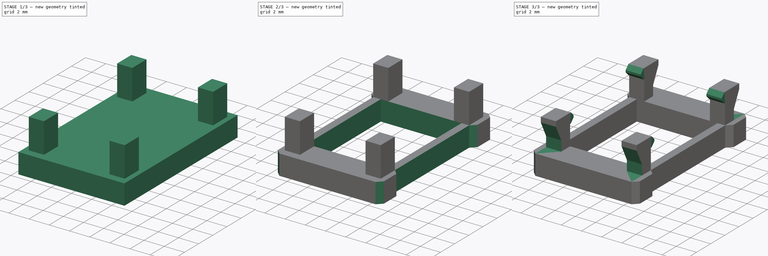
[diagram: build sequence overview — one tinted view per stage of 3, left to right]
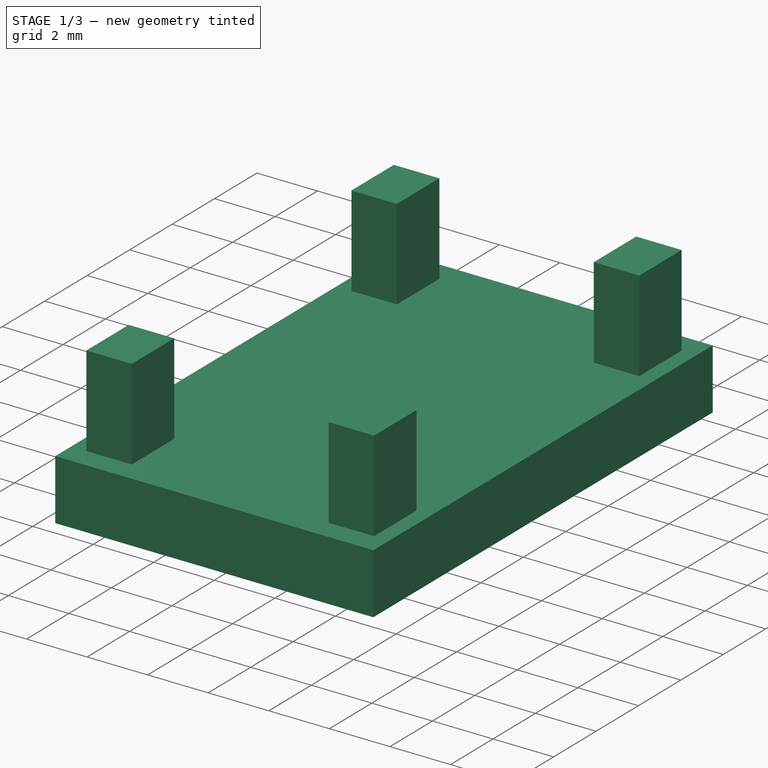
[diagram: stage 1 of 3 — iso view after this stage's code; geometry added in this stage tinted green]
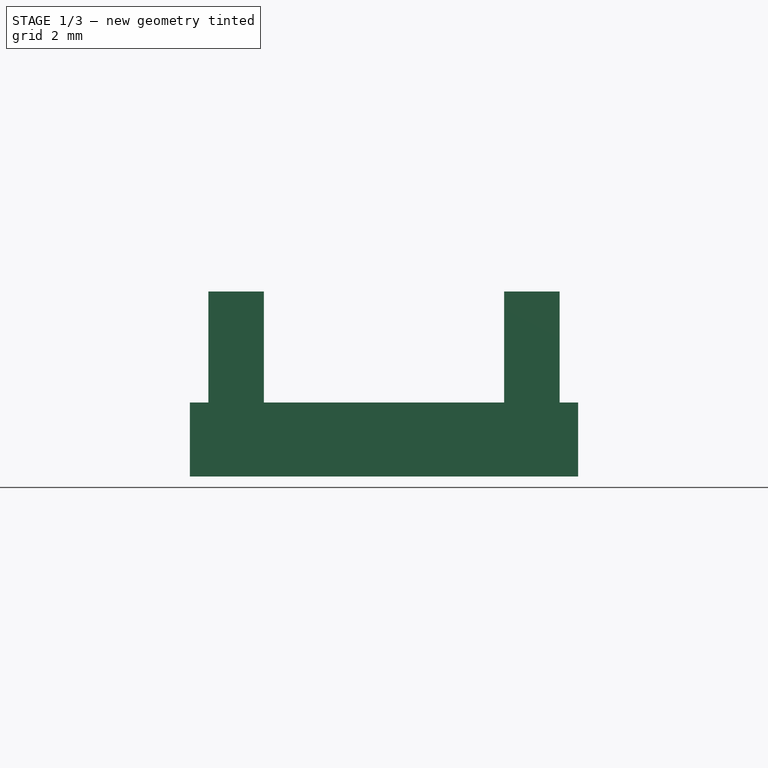
[diagram: stage 1 of 3 — front view after this stage's code; geometry added in this stage tinted green]
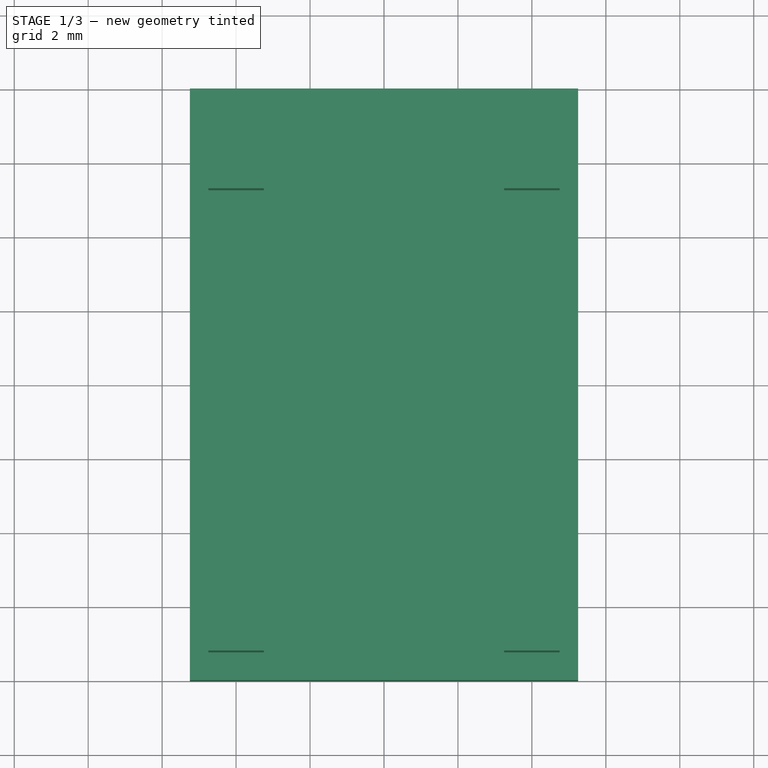
[diagram: stage 1 of 3 — top view after this stage's code; geometry added in this stage tinted green]
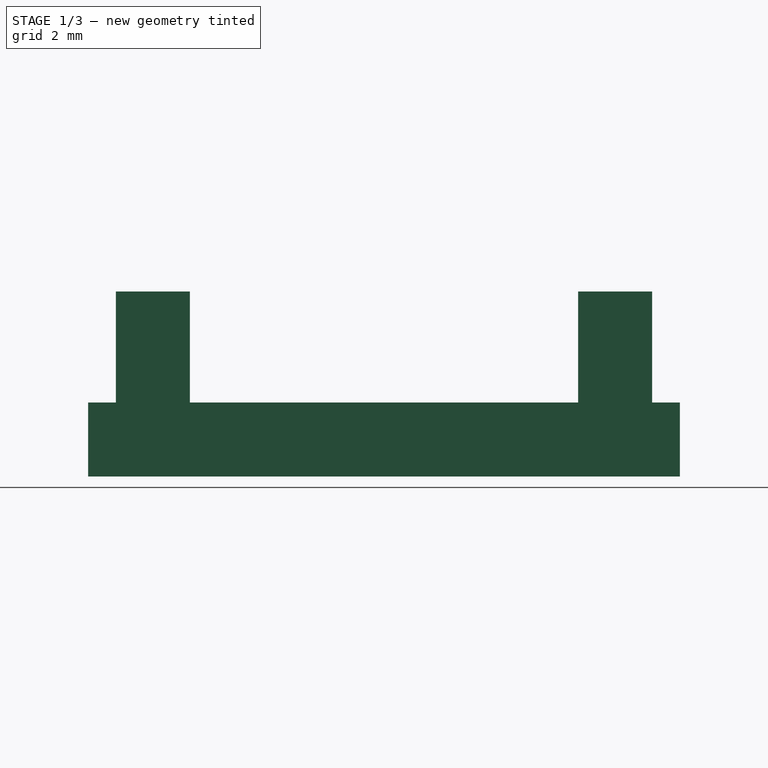
[diagram: stage 1 of 3 — right view after this stage's code; geometry added in this stage tinted green]
FCSTD DOCUMENT  (FreeCAD 0.19R24291 (Git))
Label: led-room-lamp-bracket
License: All rights reserved
LicenseURL: http://en.wikipedia.org/wiki/All_rights_reserved
objects: Sketcher::SketchObject×6, PartDesign::Pad×4, PartDesign::Pocket×2, PartDesign::Chamfer×2, PartDesign::Body×1
note: 23 computed .brp shape members not serialized (recipe doc carries the construction recipe); baked Part::Feature solids carry a one-line shape summary decoded from their .brp

FEATURE [Sketcher::SketchObject] Sketch
  FullyConstrained = true
  MapMode = 5
  Support = -> [XY_Plane]
  sketch-geometry (4):
    g0: LineSegment StartX=-5.25 StartY=7.25 StartZ=0 EndX=5.25 EndY=7.25 EndZ=0
    g1: LineSegment StartX=5.25 StartY=7.25 StartZ=0 EndX=5.25 EndY=-7.25 EndZ=0
    g2: LineSegment StartX=5.25 StartY=-7.25 StartZ=0 EndX=-5.25 EndY=-7.25 EndZ=0
    g3: LineSegment StartX=-5.25 StartY=-7.25 StartZ=0 EndX=-5.25 EndY=7.25 EndZ=0
  constraints (12):
    c: Coincident(g0,g1)
    c: Coincident(g1,g2)
    c: Coincident(g2,g3)
    c: Coincident(g3,g0)
    c: Horizontal(g0)
    c: Horizontal(g2)
    c: Vertical(g1)
    c: Vertical(g3)
    c: DistanceY(g3,g3) = 14.5
    c: DistanceY(g-1,g0) = 7.25
    c: DistanceX(g0,g0) = 10.5
    c: DistanceX(g0,g-1) = 5.25
FEATURE [PartDesign::Pad] Pad
  Direction = (1,1,1)
  Length = 2
  Length2 = 100
  Profile = -> Sketch
  Type = 0
FEATURE [Sketcher::SketchObject] Sketch001
  FullyConstrained = true
  MapMode = 5
  Placement = pos=(0,0,2) rot=(0,0,1;0rad)
  Support = -> [Pad]
  sketch-geometry (16):
    g0: LineSegment StartX=-4.75 StartY=-7.25 StartZ=0 EndX=-3.25 EndY=-7.25 EndZ=0
    g1: LineSegment StartX=-3.25 StartY=-7.25 StartZ=0 EndX=-3.25 EndY=-5.25 EndZ=0
    g2: LineSegment StartX=-3.25 StartY=-5.25 StartZ=0 EndX=-4.75 EndY=-5.25 EndZ=0
    g3: LineSegment StartX=-4.75 StartY=-5.25 StartZ=0 EndX=-4.75 EndY=-7.25 EndZ=0
    g4: LineSegment StartX=4.75 StartY=-7.25 StartZ=0 EndX=3.25 EndY=-7.25 EndZ=0
    g5: LineSegment StartX=3.25 StartY=-7.25 StartZ=0 EndX=3.25 EndY=-5.25 EndZ=0
    g6: LineSegment StartX=3.25 StartY=-5.25 StartZ=0 EndX=4.75 EndY=-5.25 EndZ=0
    g7: LineSegment StartX=4.75 StartY=-5.25 StartZ=0 EndX=4.75 EndY=-7.25 EndZ=0
    g8: LineSegment StartX=-4.75 StartY=7.25 StartZ=0 EndX=-3.25 EndY=7.25 EndZ=0
    g9: LineSegment StartX=-3.25 StartY=7.25 StartZ=0 EndX=-3.25 EndY=5.25 EndZ=0
    g10: LineSegment StartX=-3.25 StartY=5.25 StartZ=0 EndX=-4.75 EndY=5.25 EndZ=0
    g11: LineSegment StartX=-4.75 StartY=5.25 StartZ=0 EndX=-4.75 EndY=7.25 EndZ=0
    g12: LineSegment StartX=3.25 StartY=7.25 StartZ=0 EndX=4.75 EndY=7.25 EndZ=0
    g13: LineSegment StartX=4.75 StartY=7.25 StartZ=0 EndX=4.75 EndY=5.25 EndZ=0
    g14: LineSegment StartX=4.75 StartY=5.25 StartZ=0 EndX=3.25 EndY=5.25 EndZ=0
    g15: LineSegment StartX=3.25 StartY=5.25 StartZ=0 EndX=3.25 EndY=7.25 EndZ=0
  constraints (48):
    c: Coincident(g0,g1)
    c: Coincident(g1,g2)
    c: Coincident(g2,g3)
    c: Coincident(g3,g0)
    c: Horizontal(g0)
    c: Horizontal(g2)
    c: Vertical(g1)
    c: Vertical(g3)
    c: Coincident(g4,g5)
    c: Coincident(g5,g6)
    c: Coincident(g6,g7)
    c: Coincident(g7,g4)
    c: Horizontal(g4)
    c: Horizontal(g6)
    c: Vertical(g5)
    c: Vertical(g7)
    c: Coincident(g8,g9)
    c: Coincident(g9,g10)
    c: Coincident(g10,g11)
    c: Coincident(g11,g8)
    c: Horizontal(g8)
    c: Horizontal(g10)
    c: Vertical(g9)
    c: Vertical(g11)
    c: Coincident(g12,g13)
    c: Coincident(g13,g14)
    c: Coincident(g14,g15)
    c: Coincident(g15,g12)
    c: Horizontal(g12)
    c: Horizontal(g14)
    c: Vertical(g13)
    c: Vertical(g15)
    c: Equal(g10,g2)
    c: Equal(g2,g6)
    c: Equal(g6,g14)
    c: Equal(g9,g15)
    c: Equal(g15,g5)
    c: Equal(g5,g1)
    c: DistanceY(g9,g9) = 2
    c: DistanceX(g8,g8) = 1.5
    c: Horizontal(g8,g12)
    c: Horizontal(g1,g5)
    c: Vertical(g2,g10)
    c: Vertical(g14,g5)
    c: DistanceY(g0,g-1) = 7.25
    c: DistanceY(g-1,g8) = 7.25
    c: DistanceX(g8,g-1) = 4.75
    c: DistanceX(g-1,g13) = 4.75
FEATURE [PartDesign::Pad] Pad001
  BaseFeature = -> Pad
  Direction = (1,1,1)
  Length = 3
  Length2 = 100
  Profile = -> Sketch001
  Type = 0
FEATURE [Sketcher::SketchObject] Sketch002
  FullyConstrained = true
  MapMode = 5
  Placement = pos=(0,0,0) rot=(1,0,0;3.14159rad)
  Support = -> [Pad001]
  sketch-geometry (4):
    g0: LineSegment StartX=-5.25 StartY=8 StartZ=0 EndX=5.25 EndY=8 EndZ=0
    g1: LineSegment StartX=5.25 StartY=8 StartZ=0 EndX=5.25 EndY=-8 EndZ=0
    g2: LineSegment StartX=5.25 StartY=-8 StartZ=0 EndX=-5.25 EndY=-8 EndZ=0
    g3: LineSegment StartX=-5.25 StartY=-8 StartZ=0 EndX=-5.25 EndY=8 EndZ=0
  constraints (12):
    c: Coincident(g0,g1)
    c: Coincident(g1,g2)
    c: Coincident(g2,g3)
    c: Coincident(g3,g0)
    c: Horizontal(g0)
    c: Horizontal(g2)
    c: Vertical(g1)
    c: Vertical(g3)
    c: DistanceX(g0,g0) = 10.5
    c: DistanceX(g0,g-1) = 5.25
    c: DistanceY(g3,g3) = 16
    c: DistanceY(g-1,g0) = 8
FEATURE [PartDesign::Pad] Pad002
  BaseFeature = -> Pad001
  Direction = (1,1,1)
  Length = 2
  Length2 = 100
  Profile = -> Sketch002
  Reversed = true
  Type = 0
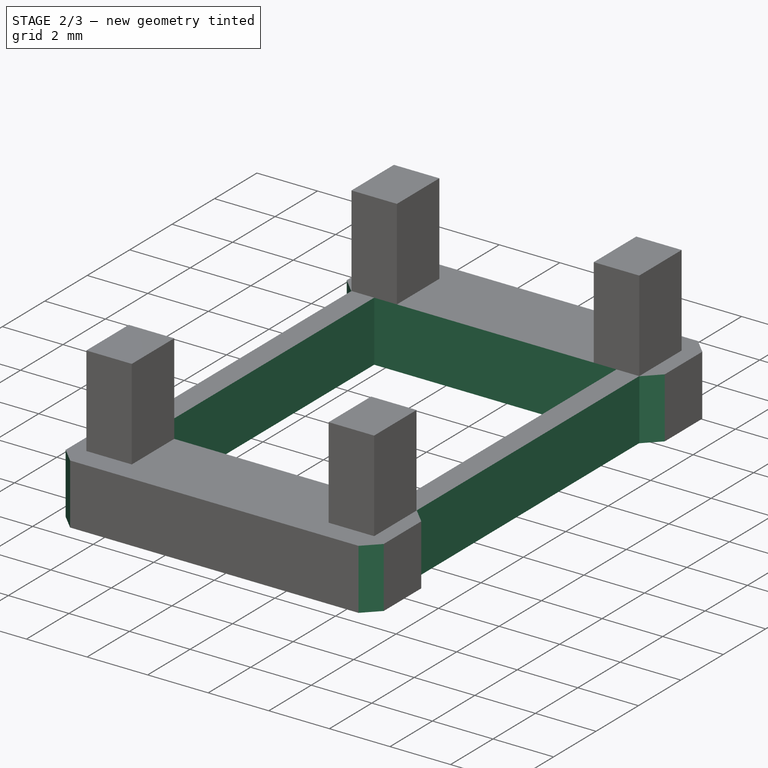
[diagram: stage 2 of 3 — iso view after this stage's code; geometry added in this stage tinted green]
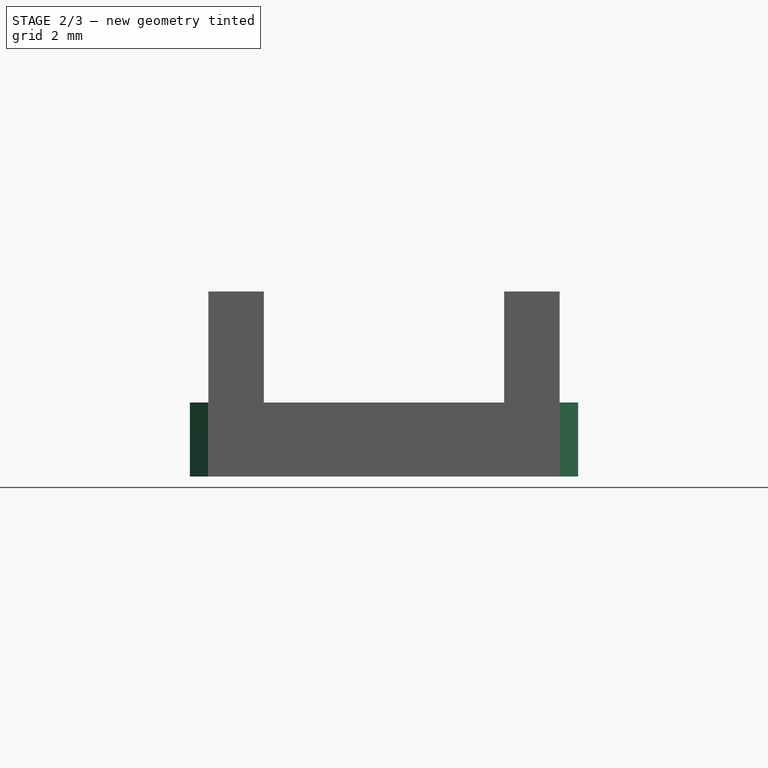
[diagram: stage 2 of 3 — front view after this stage's code; geometry added in this stage tinted green]
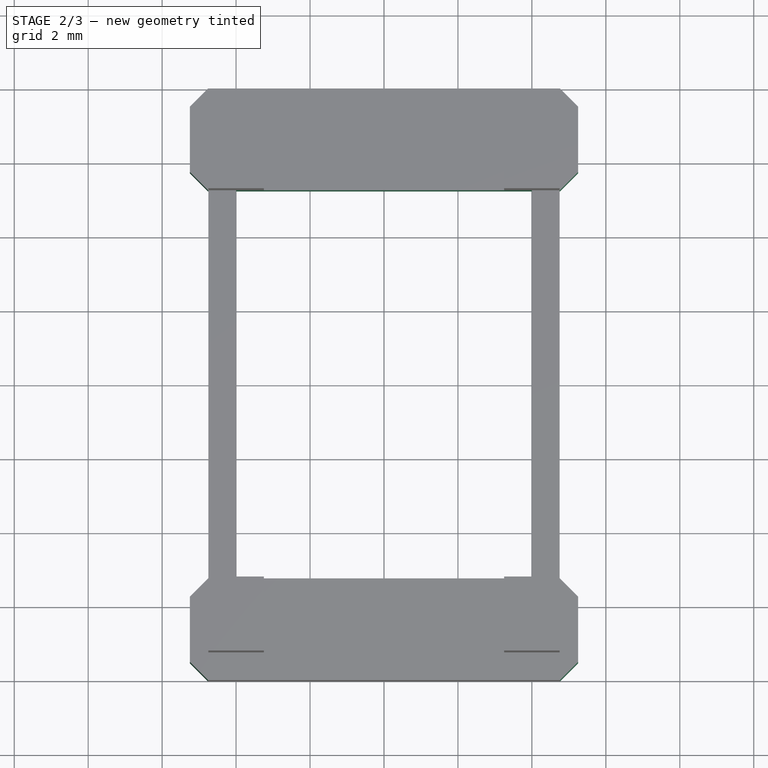
[diagram: stage 2 of 3 — top view after this stage's code; geometry added in this stage tinted green]
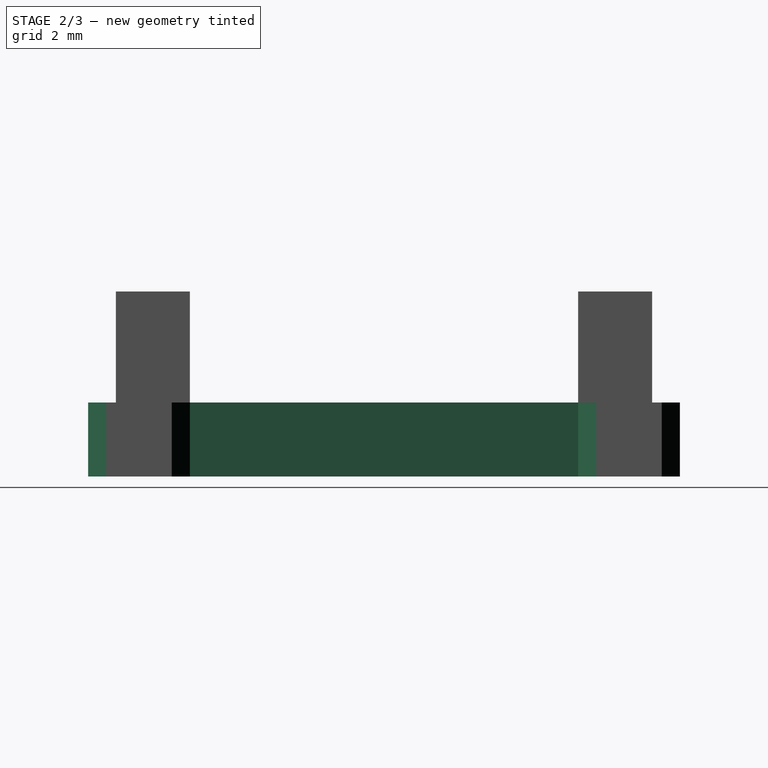
[diagram: stage 2 of 3 — right view after this stage's code; geometry added in this stage tinted green]
FEATURE [Sketcher::SketchObject] Sketch003
  FullyConstrained = true
  MapMode = 5
  Placement = pos=(0,0,2) rot=(0,0,1;0rad)
  Support = -> [Pad002]
  sketch-geometry (12):
    g0: LineSegment StartX=-4 StartY=5.25 StartZ=0 EndX=4 EndY=5.25 EndZ=0
    g1: LineSegment StartX=4 StartY=5.25 StartZ=0 EndX=4 EndY=-5.25 EndZ=0
    g2: LineSegment StartX=4 StartY=-5.25 StartZ=0 EndX=-4 EndY=-5.25 EndZ=0
    g3: LineSegment StartX=-4 StartY=-5.25 StartZ=0 EndX=-4 EndY=5.25 EndZ=0
    g4: LineSegment StartX=-5.25 StartY=5.25 StartZ=0 EndX=-4.75 EndY=5.25 EndZ=0
    g5: LineSegment StartX=-4.75 StartY=5.25 StartZ=0 EndX=-4.75 EndY=-5.25 EndZ=0
    g6: LineSegment StartX=-4.75 StartY=-5.25 StartZ=0 EndX=-5.25 EndY=-5.25 EndZ=0
    g7: LineSegment StartX=-5.25 StartY=-5.25 StartZ=0 EndX=-5.25 EndY=5.25 EndZ=0
    g8: LineSegment StartX=5.25 StartY=5.25 StartZ=0 EndX=4.75 EndY=5.25 EndZ=0
    g9: LineSegment StartX=4.75 StartY=5.25 StartZ=0 EndX=4.75 EndY=-5.25 EndZ=0
    g10: LineSegment StartX=4.75 StartY=-5.25 StartZ=0 EndX=5.25 EndY=-5.25 EndZ=0
    g11: LineSegment StartX=5.25 StartY=-5.25 StartZ=0 EndX=5.25 EndY=5.25 EndZ=0
  constraints (36):
    c: Coincident(g0,g1)
    c: Coincident(g1,g2)
    c: Coincident(g2,g3)
    c: Coincident(g3,g0)
    c: Horizontal(g0)
    c: Horizontal(g2)
    c: Vertical(g1)
    c: Vertical(g3)
    c: DistanceY(g3,g3) = 10.5
    c: DistanceY(g-1,g0) = 5.25
    c: DistanceX(g2,g2) = 8
    c: DistanceX(g2,g-1) = 4
    c: Coincident(g4,g5)
    c: Coincident(g5,g6)
    c: Coincident(g6,g7)
    c: Coincident(g7,g4)
    c: Horizontal(g4)
    c: Horizontal(g6)
    c: Vertical(g5)
    c: Vertical(g7)
    c: Coincident(g8,g9)
    c: Coincident(g9,g10)
    c: Coincident(g10,g11)
    c: Coincident(g11,g8)
    c: Horizontal(g8)
    c: Horizontal(g10)
    c: Vertical(g9)
    c: Vertical(g11)
    c: Horizontal(g9,g1)
    c: Horizontal(g1,g6)
    c: Horizontal(g4,g0)
    c: Horizontal(g0,g8)
    c: Equal(g8,g4)
    c: DistanceX(g8,g8) = 0.5
    c: DistanceX(g0,g8) = 0.75
    c: DistanceX(g4,g0) = 0.75
FEATURE [PartDesign::Pocket] Pocket
  BaseFeature = -> Pad002
  Length = 5
  Length2 = 100
  Profile = -> Sketch003
  Refine = true
  Type = 1
FEATURE [PartDesign::Chamfer] Chamfer
  Angle = 45
  Base = -> Pocket [Edge40,Edge42,Edge27,Edge21,Edge22,Edge55,Edge60,Edge44]
  BaseFeature = -> Pocket
  ChamferType = 0
  FlipDirection = false
  Size = 0.49
  Size2 = 1
  SupportTransform = false
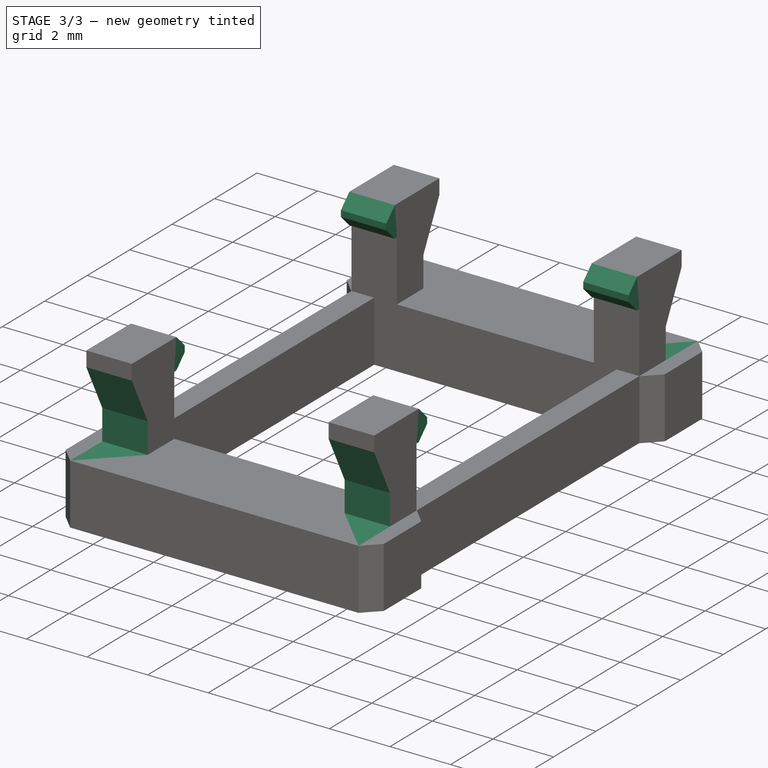
[diagram: stage 3 of 3 — iso view after this stage's code; geometry added in this stage tinted green]
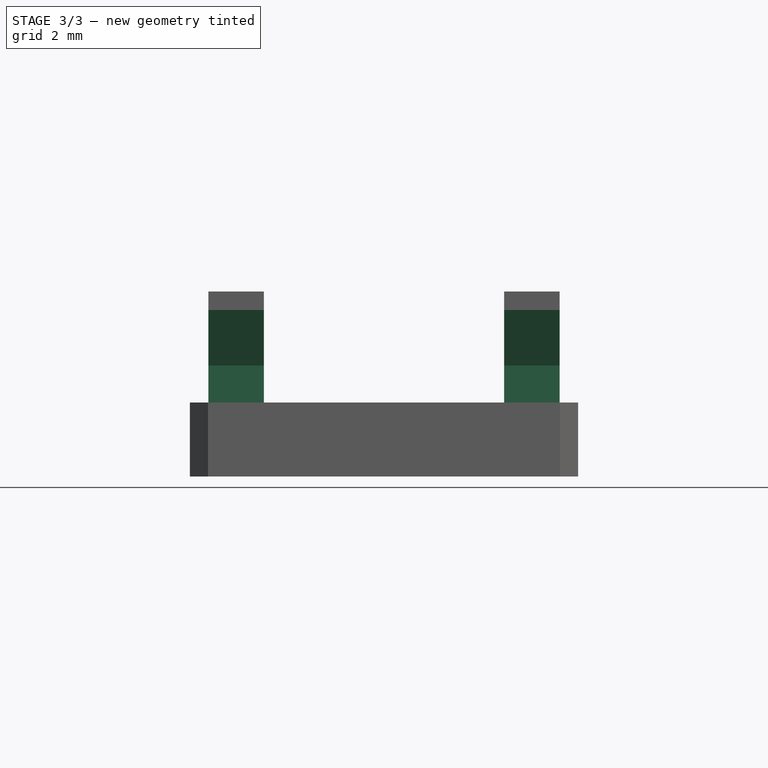
[diagram: stage 3 of 3 — front view after this stage's code; geometry added in this stage tinted green]
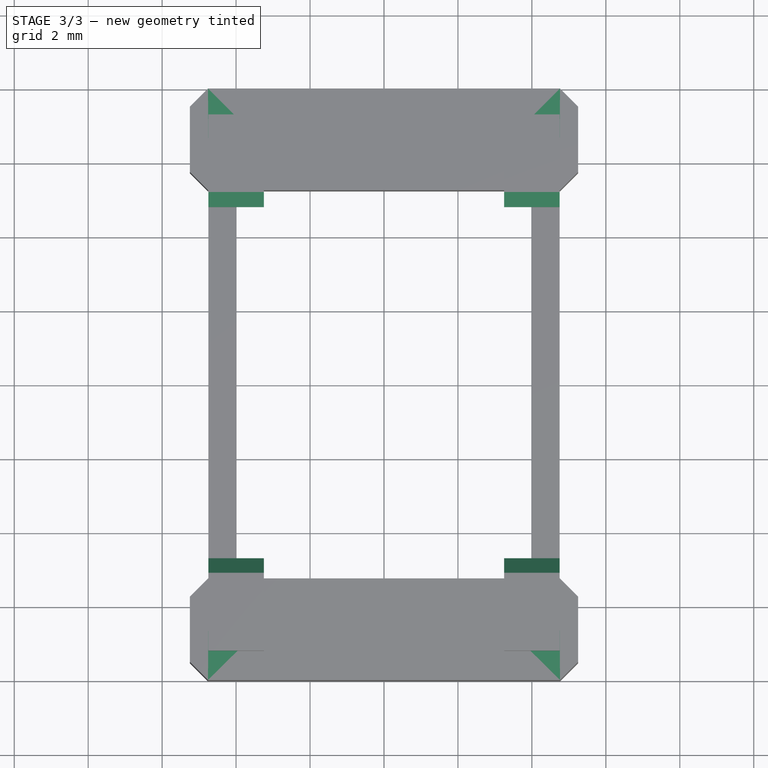
[diagram: stage 3 of 3 — top view after this stage's code; geometry added in this stage tinted green]
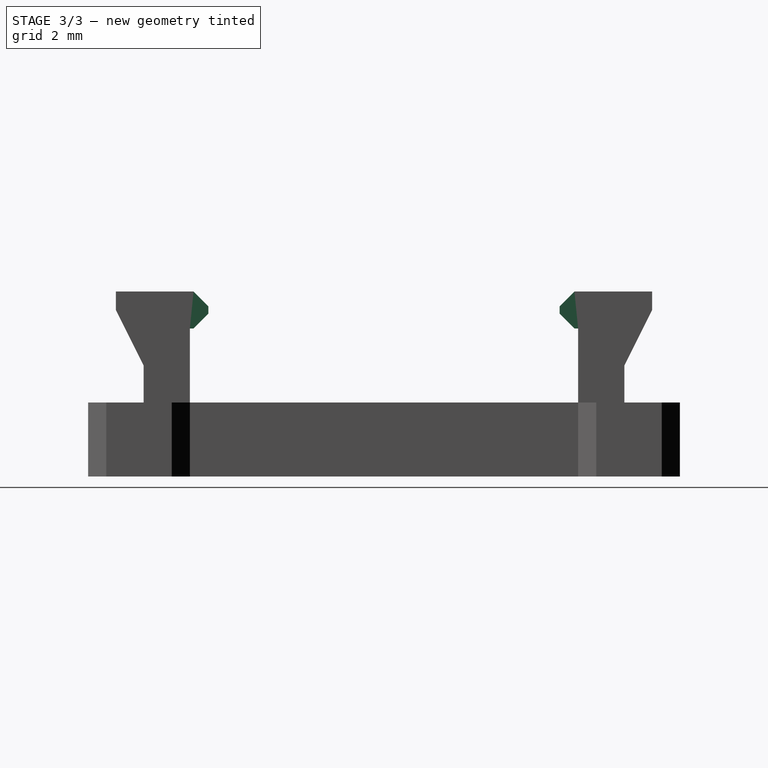
[diagram: stage 3 of 3 — right view after this stage's code; geometry added in this stage tinted green]
FEATURE [Sketcher::SketchObject] Sketch004
  ExternalGeometry = -> [Chamfer]
  FullyConstrained = true
  MapMode = 5
  Placement = pos=(0,0,5) rot=(0,0,1;0rad)
  Support = -> [Chamfer]
  sketch-geometry (16):
    g0: LineSegment StartX=-4.75 StartY=7.25 StartZ=0 EndX=-3.25 EndY=7.25 EndZ=0
    g1: LineSegment StartX=-3.25 StartY=7.25 StartZ=0 EndX=-3.25 EndY=4.75 EndZ=0
    g2: LineSegment StartX=-3.25 StartY=4.75 StartZ=0 EndX=-4.75 EndY=4.75 EndZ=0
    g3: LineSegment StartX=-4.75 StartY=4.75 StartZ=0 EndX=-4.75 EndY=7.25 EndZ=0
    g4: LineSegment StartX=-4.75 StartY=-7.25 StartZ=0 EndX=-3.25 EndY=-7.25 EndZ=0
    g5: LineSegment StartX=-3.25 StartY=-7.25 StartZ=0 EndX=-3.25 EndY=-4.75 EndZ=0
    g6: LineSegment StartX=-3.25 StartY=-4.75 StartZ=0 EndX=-4.75 EndY=-4.75 EndZ=0
    g7: LineSegment StartX=-4.75 StartY=-4.75 StartZ=0 EndX=-4.75 EndY=-7.25 EndZ=0
    g8: LineSegment StartX=4.75 StartY=-7.25 StartZ=0 EndX=3.25 EndY=-7.25 EndZ=0
    g9: LineSegment StartX=3.25 StartY=-7.25 StartZ=0 EndX=3.25 EndY=-4.75 EndZ=0
    g10: LineSegment StartX=3.25 StartY=-4.75 StartZ=0 EndX=4.75 EndY=-4.75 EndZ=0
    g11: LineSegment StartX=4.75 StartY=-4.75 StartZ=0 EndX=4.75 EndY=-7.25 EndZ=0
    g12: LineSegment StartX=4.75 StartY=7.25 StartZ=0 EndX=3.25 EndY=7.25 EndZ=0
    g13: LineSegment StartX=3.25 StartY=7.25 StartZ=0 EndX=3.25 EndY=4.75 EndZ=0
    g14: LineSegment StartX=3.25 StartY=4.75 StartZ=0 EndX=4.75 EndY=4.75 EndZ=0
    g15: LineSegment StartX=4.75 StartY=4.75 StartZ=0 EndX=4.75 EndY=7.25 EndZ=0
  constraints (44):
    c: Coincident(g0,g1)
    c: Coincident(g1,g2)
    c: Coincident(g2,g3)
    c: Coincident(g3,g0)
    c: Horizontal(g0)
    c: Horizontal(g2)
    c: Vertical(g1)
    c: Vertical(g3)
    c: Coincident(g0,g-4)
    c: Coincident(g4,g5)
    c: Coincident(g5,g6)
    c: Coincident(g6,g7)
    c: Coincident(g7,g4)
    c: Horizontal(g4)
    c: Horizontal(g6)
    c: Vertical(g5)
    c: Vertical(g7)
    c: Coincident(g4,g-6)
    c: Coincident(g8,g9)
    c: Coincident(g9,g10)
    c: Coincident(g10,g11)
    c: Coincident(g11,g8)
    c: Horizontal(g8)
    c: Horizontal(g10)
    c: Vertical(g9)
    c: Vertical(g11)
    c: Coincident(g8,g-8)
    c: Coincident(g12,g13)
    c: Coincident(g13,g14)
    c: Coincident(g14,g15)
    c: Coincident(g15,g12)
    c: Horizontal(g12)
    c: Horizontal(g14)
    c: Vertical(g13)
    c: Vertical(g15)
    c: Coincident(g12,g-10)
    c: Horizontal(g1,g13)
    c: Horizontal(g5,g9)
    c: Vertical(g1,g5)
    c: Vertical(g9,g13)
    c: Equal(g6,g10)
    c: Equal(g9,g13)
    c: DistanceY(g1,g1) = 2.5
    c: DistanceX(g2,g2) = 1.5
FEATURE [PartDesign::Pad] Pad003
  BaseFeature = -> Chamfer
  Direction = (1,1,1)
  Length = 1
  Length2 = 100
  Profile = -> Sketch004
  Reversed = true
  Type = 0
FEATURE [PartDesign::Chamfer] Chamfer001
  Angle = 45
  Base = -> Pad003 [Edge164,Edge121,Edge154,Edge114,Edge172,Edge126,Edge177,Edge129]
  BaseFeature = -> Pad003
  ChamferType = 0
  FlipDirection = false
  Refine = true
  Size = 0.4
  Size2 = 1
  SupportTransform = false
FEATURE [Sketcher::SketchObject] Sketch005
  ExternalGeometry = -> [Chamfer001]
  FullyConstrained = true
  MapMode = 5
  Placement = pos=(4.75,-5e-16,-2e-16) rot=(0.57735,0.57735,0.57735;2.0944rad)
  Support = -> [Chamfer001]
  sketch-geometry (8):
    g0: LineSegment StartX=-7.25 StartY=4.5 StartZ=0 EndX=-6.5 EndY=3 EndZ=0
    g1: LineSegment StartX=-6.5 StartY=3 StartZ=0 EndX=-6.5 EndY=2 EndZ=0
    g2: LineSegment StartX=-6.5 StartY=2 StartZ=0 EndX=-7.25 EndY=2 EndZ=0
    g3: LineSegment StartX=-7.25 StartY=2 StartZ=0 EndX=-7.25 EndY=4.5 EndZ=0
    g4: LineSegment StartX=7.25 StartY=4.5 StartZ=0 EndX=6.5 EndY=3 EndZ=0
    g5: LineSegment StartX=6.5 StartY=3 StartZ=0 EndX=6.5 EndY=2 EndZ=0
    g6: LineSegment StartX=6.5 StartY=2 StartZ=0 EndX=7.25 EndY=2 EndZ=0
    g7: LineSegment StartX=7.25 StartY=2 StartZ=0 EndX=7.25 EndY=4.5 EndZ=0
  constraints (22):
    c: PointOnObject(g0,g-3)
    c: Coincident(g0,g1)
    c: Vertical(g1)
    c: Coincident(g1,g2)
    c: Coincident(g2,g-3)
    c: Horizontal(g2)
    c: Coincident(g2,g3)
    c: Coincident(g3,g0)
    c: PointOnObject(g4,g-4)
    c: Coincident(g4,g5)
    c: Vertical(g5)
    c: Coincident(g5,g6)
    c: Coincident(g6,g-4)
    c: Horizontal(g6)
    c: Coincident(g6,g7)
    c: Coincident(g7,g4)
    c: Equal(g6,g2)
    c: Equal(g1,g5)
    c: Equal(g3,g7)
    c: DistanceX(g2,g2) = 0.75
    c: DistanceY(g1,g1) = 1
    c: DistanceY(g3,g3) = 2.5
FEATURE [PartDesign::Pocket] Pocket001
  BaseFeature = -> Chamfer001
  Length = 5
  Length2 = 100
  Profile = -> Sketch005
  Refine = true
  Type = 1
FEATURE [PartDesign::Body] Body
  Group = -> [Sketch,Pad,Sketch001,Pad001,Sketch002,Pad002,Sketch003,Pocket,Chamfer,Sketch004,Pad003,Chamfer001,Sketch005,Pocket001]
  Origin = -> Origin
  Tip = -> Pocket001
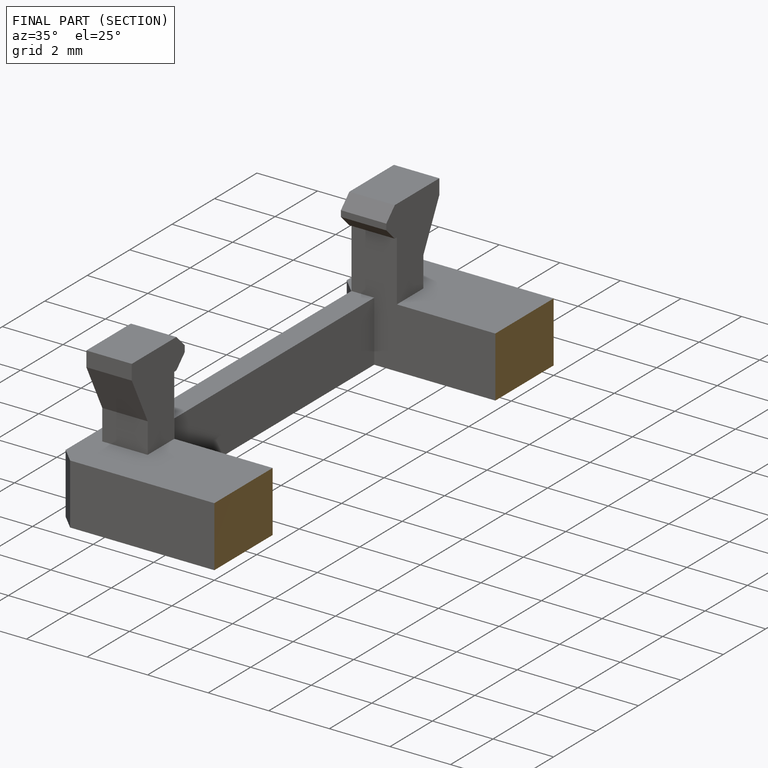
[diagram: finished part — half-section view (interior)]
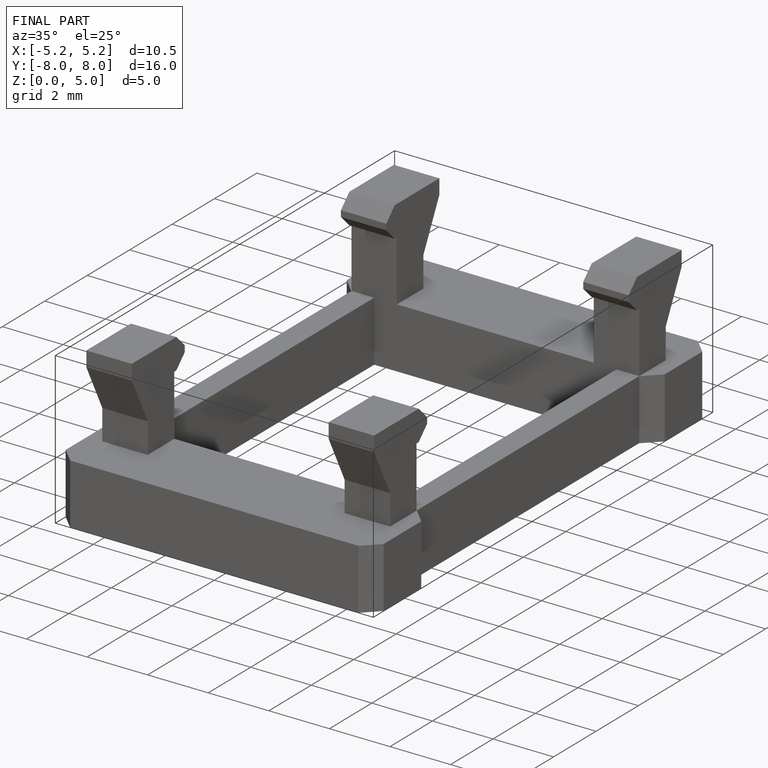
[diagram: finished part — iso view with bounding-box wireframe]
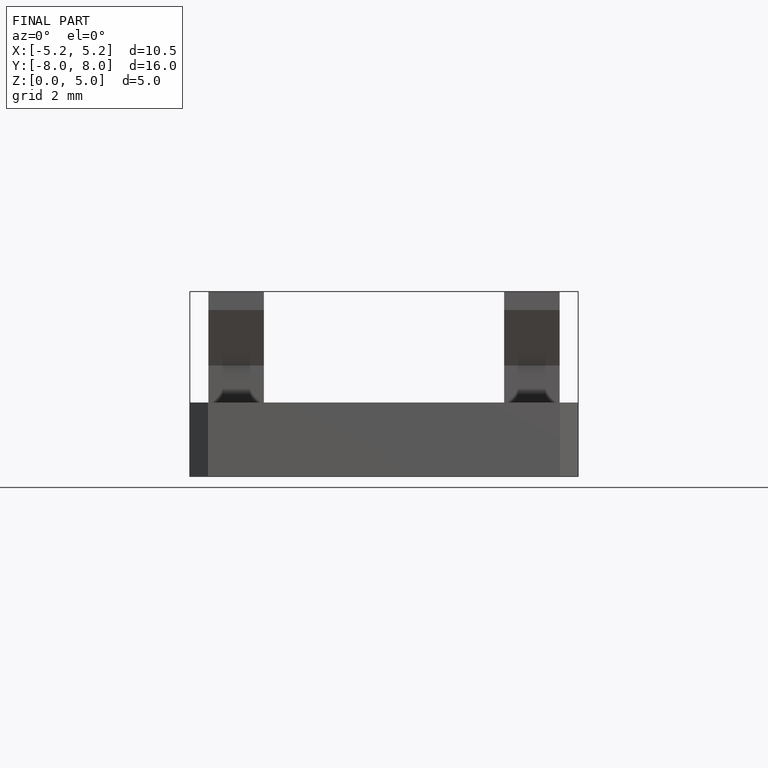
[diagram: finished part — front view with bounding-box wireframe]
